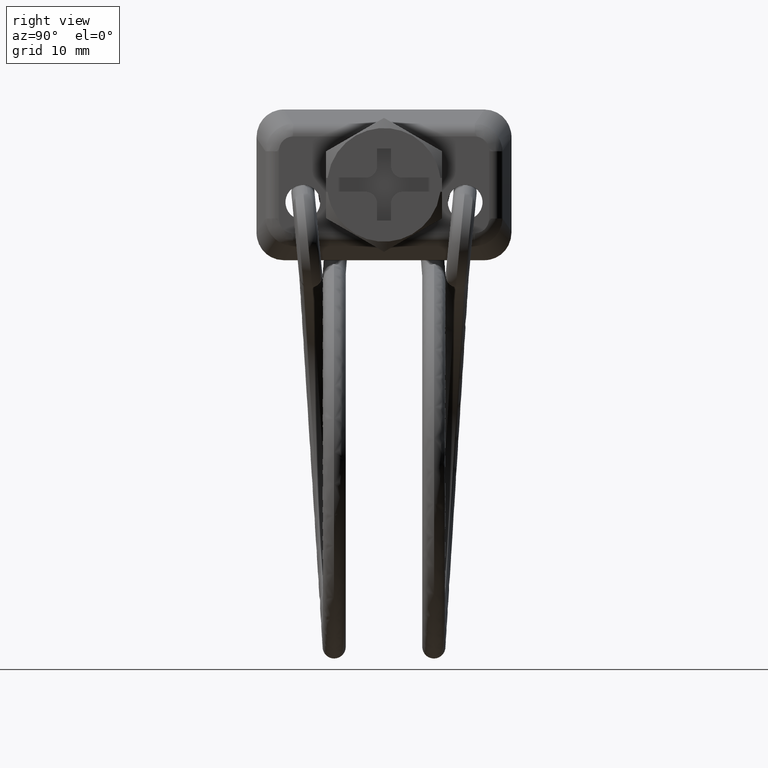
[diagram: clean part render]
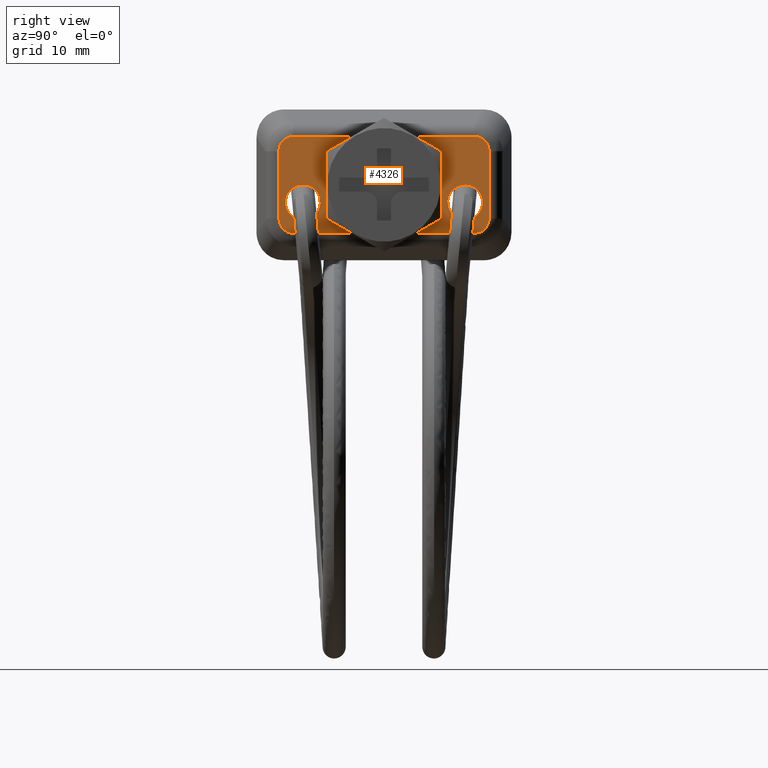
[diagram: same view with one face highlighted and labeled with its STEP entity id]
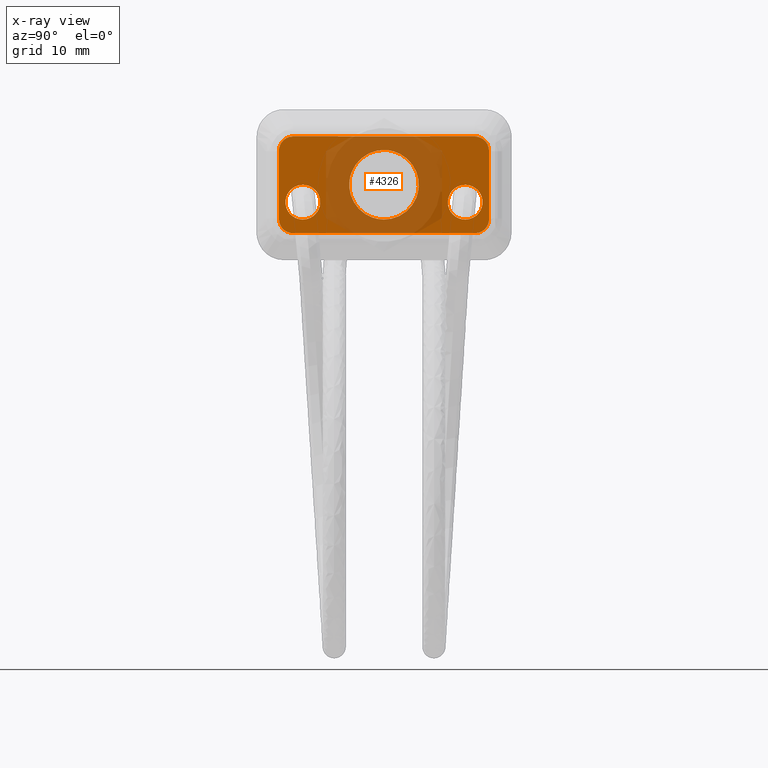
[diagram: x-ray of the same camera — body ghosted, the highlighted face saturated]
A machine part, right view. The second image highlights one B-rep face of the part: STEP entity #4326.
The next image is the same camera in x-ray: the body ghosted, the highlighted face saturated — about 46% of this face is hidden behind the body in this view.
In plain terms, the highlighted face is a freeform B-spline surface patch.
Its self-contained STEP definition (entity closure, byte-faithful):
#1716=CARTESIAN_POINT('',(-34.700000000000003,-2.979028575960326,0.354102730308290));
#1717=VERTEX_POINT('',#1716);
#1723=CARTESIAN_POINT('',(-34.700000000000003,0.0,-3.0));
#1724=VERTEX_POINT('',#1723);
#1725=CARTESIAN_POINT('',(-34.700000000000003,-2.979028575960326,0.354102730308290));
#1726=CARTESIAN_POINT('',(-34.700000000000003,-3.000000000000000,0.177672385572188));
#1727=CARTESIAN_POINT('',(-34.700000000000003,-3.0,0.0));
#1728=CARTESIAN_POINT('',(-34.700000000000003,-3.0,-3.0));
#1729=CARTESIAN_POINT('',(-34.700000000000003,0.0,-3.0));
#1737=(BOUNDED_CURVE()B_SPLINE_CURVE(2,(#1725,#1726,#1727,#1728,#1729),.UNSPECIFIED.,.F.,.U.)B_SPLINE_CURVE_WITH_KNOTS((3,2,3),(0.229562470527281,0.250000000000000,0.500000000000000),.UNSPECIFIED.)CURVE()GEOMETRIC_REPRESENTATION_ITEM()RATIONAL_B_SPLINE_CURVE((0.956026748330571,0.976055944832562,1.0,0.707106781186548,1.0))REPRESENTATION_ITEM(''));
#1738=EDGE_CURVE('',#1717,#1724,#1737,.T.);
#1740=CARTESIAN_POINT('',(-34.700000000000003,2.994404395263818,-0.183145618633717));
#1741=VERTEX_POINT('',#1740);
#1742=CARTESIAN_POINT('',(-34.700000000000003,0.0,-3.0));
#1743=CARTESIAN_POINT('',(-34.700000000000010,2.822118200662052,-3.000000000000001));
#1744=CARTESIAN_POINT('',(-34.700000000000003,2.994404395263818,-0.183145618633717));
#1752=(BOUNDED_CURVE()B_SPLINE_CURVE(2,(#1742,#1743,#1744),.UNSPECIFIED.,.F.,.U.)B_SPLINE_CURVE_WITH_KNOTS((3,3),(0.500000000000000,0.739332962238610),.UNSPECIFIED.)CURVE()GEOMETRIC_REPRESENTATION_ITEM()RATIONAL_B_SPLINE_CURVE((1.0,0.719603993287100,0.976072041666004))REPRESENTATION_ITEM(''));
#1753=EDGE_CURVE('',#1724,#1741,#1752,.T.);
#1827=CARTESIAN_POINT('',(-34.700000000000003,0.0,3.0));
#1828=VERTEX_POINT('',#1827);
#1829=CARTESIAN_POINT('',(-34.700000000000003,2.994404395263818,-0.183145618633717));
#1830=CARTESIAN_POINT('',(-34.700000000000003,3.000000000000000,-0.091658289924994));
#1831=CARTESIAN_POINT('',(-34.700000000000003,3.0,0.0));
#1832=CARTESIAN_POINT('',(-34.700000000000003,3.0,3.0));
#1833=CARTESIAN_POINT('',(-34.700000000000003,0.0,3.0));
#1841=(BOUNDED_CURVE()B_SPLINE_CURVE(2,(#1829,#1830,#1831,#1832,#1833),.UNSPECIFIED.,.F.,.U.)B_SPLINE_CURVE_WITH_KNOTS((3,2,3),(0.739332962238609,0.750000000000000,1.0),.UNSPECIFIED.)CURVE()GEOMETRIC_REPRESENTATION_ITEM()RATIONAL_B_SPLINE_CURVE((0.976072041666003,0.987502787899447,1.0,0.707106781186548,1.0))REPRESENTATION_ITEM(''));
#1842=EDGE_CURVE('',#1741,#1828,#1841,.T.);
#1844=CARTESIAN_POINT('',(-34.700000000000003,0.0,3.0));
#1845=CARTESIAN_POINT('',(-34.700000000000010,-2.664523530407568,3.000000000000001));
#1846=CARTESIAN_POINT('',(-34.700000000000003,-2.979028575960326,0.354102730308290));
#1854=(BOUNDED_CURVE()B_SPLINE_CURVE(2,(#1844,#1845,#1846),.UNSPECIFIED.,.F.,.U.)B_SPLINE_CURVE_WITH_KNOTS((3,3),(0.0,0.229562470527281),.UNSPECIFIED.)CURVE()GEOMETRIC_REPRESENTATION_ITEM()RATIONAL_B_SPLINE_CURVE((1.0,0.731050836353986,0.956026748330571))REPRESENTATION_ITEM(''));
#1855=EDGE_CURVE('',#1828,#1717,#1854,.T.);
#1906=CARTESIAN_POINT('',(-34.700000000000003,-5.728323509155258,-0.704488276245185));
#1907=VERTEX_POINT('',#1906);
#1913=CARTESIAN_POINT('',(-34.700000000000003,-7.000000000000110,1.140581E-013));
#1914=VERTEX_POINT('',#1913);
#1915=CARTESIAN_POINT('',(-34.699999999999996,-5.728323509155258,-0.704488276245185));
#1916=CARTESIAN_POINT('',(-34.700000000000010,-6.169024180304628,1.140581E-013));
#1917=CARTESIAN_POINT('',(-34.700000000000003,-7.000000000000110,1.140581E-013));
#1925=(BOUNDED_CURVE()B_SPLINE_CURVE(2,(#1915,#1916,#1917),.UNSPECIFIED.,.F.,.U.)B_SPLINE_CURVE_WITH_KNOTS((3,3),(0.840692936319955,1.0),.UNSPECIFIED.)CURVE()GEOMETRIC_REPRESENTATION_ITEM()RATIONAL_B_SPLINE_CURVE((0.864584682895011,0.813360165356128,1.0))REPRESENTATION_ITEM(''));
#1926=EDGE_CURVE('',#1907,#1914,#1925,.T.);
#1928=CARTESIAN_POINT('',(-34.700000000000003,-7.000000000000110,-2.999999999999886));
#1929=VERTEX_POINT('',#1928);
#1930=CARTESIAN_POINT('',(-34.700000000000003,-7.000000000000110,1.140581E-013));
#1931=CARTESIAN_POINT('',(-34.700000000000003,-8.500000000000110,1.140581E-013));
#1932=CARTESIAN_POINT('',(-34.700000000000003,-8.500000000000110,-1.499999999999886));
#1933=CARTESIAN_POINT('',(-34.700000000000003,-8.500000000000110,-2.999999999999886));
#1934=CARTESIAN_POINT('',(-34.700000000000003,-7.000000000000110,-2.999999999999886));
#1942=(BOUNDED_CURVE()B_SPLINE_CURVE(2,(#1930,#1931,#1932,#1933,#1934),.UNSPECIFIED.,.F.,.U.)B_SPLINE_CURVE_WITH_KNOTS((3,2,3),(0.0,0.250000000000000,0.500000000000000),.UNSPECIFIED.)CURVE()GEOMETRIC_REPRESENTATION_ITEM()RATIONAL_B_SPLINE_CURVE((1.0,0.707106781186548,1.0,0.707106781186548,1.0))REPRESENTATION_ITEM(''));
#1943=EDGE_CURVE('',#1914,#1929,#1942,.T.);
#1945=CARTESIAN_POINT('',(-34.700000000000003,-5.502797802367722,-1.591572809308911));
#1946=VERTEX_POINT('',#1945);
#1947=CARTESIAN_POINT('',(-34.700000000000003,-7.000000000000110,-2.999999999999886));
#1948=CARTESIAN_POINT('',(-34.700000000000003,-5.588940899654296,-2.999999999999887));
#1949=CARTESIAN_POINT('',(-34.700000000000003,-5.502797802367722,-1.591572809308911));
#1957=(BOUNDED_CURVE()B_SPLINE_CURVE(2,(#1947,#1948,#1949),.UNSPECIFIED.,.F.,.U.)B_SPLINE_CURVE_WITH_KNOTS((3,3),(0.500000000000000,0.739332962240415),.UNSPECIFIED.)CURVE()GEOMETRIC_REPRESENTATION_ITEM()RATIONAL_B_SPLINE_CURVE((1.0,0.719603993284985,0.976072041669873))REPRESENTATION_ITEM(''));
#1958=EDGE_CURVE('',#1929,#1946,#1957,.T.);
#2045=CARTESIAN_POINT('',(-34.700000000000003,-5.502797802367722,-1.591572809308911));
#2046=CARTESIAN_POINT('',(-34.700000000000003,-5.500000000000112,-1.545829144954528));
#2047=CARTESIAN_POINT('',(-34.700000000000003,-5.500000000000111,-1.499999999999886));
#2048=CARTESIAN_POINT('',(-34.700000000000017,-5.500000000000111,-1.069478043496760));
#2049=CARTESIAN_POINT('',(-34.699999999999996,-5.728323509155258,-0.704488276245185));
#2057=(BOUNDED_CURVE()B_SPLINE_CURVE(2,(#2045,#2046,#2047,#2048,#2049),.UNSPECIFIED.,.F.,.U.)B_SPLINE_CURVE_WITH_KNOTS((3,2,3),(0.739332962240415,0.750000000000000,0.840692936319955),.UNSPECIFIED.)CURVE()GEOMETRIC_REPRESENTATION_ITEM()RATIONAL_B_SPLINE_CURVE((0.976072041669872,0.987502787901562,1.0,0.893746615830419,0.864584682895011))REPRESENTATION_ITEM(''));
#2058=EDGE_CURVE('',#1946,#1907,#2057,.T.);
#2109=CARTESIAN_POINT('',(-34.700000000000003,5.910109551682131,-2.530601188950051));
#2110=VERTEX_POINT('',#2109);
#2116=CARTESIAN_POINT('',(-34.700000000000003,6.999999999999830,-2.999999999999886));
#2117=VERTEX_POINT('',#2116);
#2118=CARTESIAN_POINT('',(-34.700000000000003,5.910109551682131,-2.530601188950051));
#2119=CARTESIAN_POINT('',(-34.700000000000003,6.353973053097364,-2.999999999999885));
#2120=CARTESIAN_POINT('',(-34.700000000000003,6.999999999999830,-2.999999999999886));
#2128=(BOUNDED_CURVE()B_SPLINE_CURVE(2,(#2118,#2119,#2120),.UNSPECIFIED.,.F.,.U.)B_SPLINE_CURVE_WITH_KNOTS((3,3),(0.370781904211150,0.500000000000000),.UNSPECIFIED.)CURVE()GEOMETRIC_REPRESENTATION_ITEM()RATIONAL_B_SPLINE_CURVE((0.853720150702530,0.848611583981835,1.0))REPRESENTATION_ITEM(''));
#2129=EDGE_CURVE('',#2110,#2117,#2128,.T.);
#2131=CARTESIAN_POINT('',(-34.700000000000003,6.999999999999830,1.140581E-013));
#2132=VERTEX_POINT('',#2131);
#2133=CARTESIAN_POINT('',(-34.700000000000003,6.999999999999830,-2.999999999999886));
#2134=CARTESIAN_POINT('',(-34.700000000000003,8.499999999999831,-2.999999999999886));
#2135=CARTESIAN_POINT('',(-34.700000000000003,8.499999999999831,-1.499999999999886));
#2136=CARTESIAN_POINT('',(-34.700000000000003,8.499999999999831,1.140581E-013));
#2137=CARTESIAN_POINT('',(-34.700000000000003,6.999999999999830,1.140581E-013));
#2145=(BOUNDED_CURVE()B_SPLINE_CURVE(2,(#2133,#2134,#2135,#2136,#2137),.UNSPECIFIED.,.F.,.U.)B_SPLINE_CURVE_WITH_KNOTS((3,2,3),(0.500000000000000,0.750000000000000,1.0),.UNSPECIFIED.)CURVE()GEOMETRIC_REPRESENTATION_ITEM()RATIONAL_B_SPLINE_CURVE((1.0,0.707106781186548,1.0,0.707106781186548,1.0))REPRESENTATION_ITEM(''));
#2146=EDGE_CURVE('',#2117,#2132,#2145,.T.);
#2148=CARTESIAN_POINT('',(-34.700000000000003,5.502797802367442,-1.408427190690861));
#2149=VERTEX_POINT('',#2148);
#2150=CARTESIAN_POINT('',(-34.700000000000003,6.999999999999830,1.140581E-013));
#2151=CARTESIAN_POINT('',(-34.699999999999996,5.588940899654014,1.140581E-013));
#2152=CARTESIAN_POINT('',(-34.700000000000003,5.502797802367442,-1.408427190690861));
#2160=(BOUNDED_CURVE()B_SPLINE_CURVE(2,(#2150,#2151,#2152),.UNSPECIFIED.,.F.,.U.)B_SPLINE_CURVE_WITH_KNOTS((3,3),(0.0,0.239332962240415),.UNSPECIFIED.)CURVE()GEOMETRIC_REPRESENTATION_ITEM()RATIONAL_B_SPLINE_CURVE((1.0,0.719603993284986,0.976072041669873))REPRESENTATION_ITEM(''));
#2161=EDGE_CURVE('',#2132,#2149,#2160,.T.);
#2252=CARTESIAN_POINT('',(-34.700000000000003,5.502797802367442,-1.408427190690862));
#2253=CARTESIAN_POINT('',(-34.700000000000003,5.499999999999830,-1.454170855045245));
#2254=CARTESIAN_POINT('',(-34.700000000000003,5.499999999999830,-1.499999999999886));
#2255=CARTESIAN_POINT('',(-34.700000000000017,5.499999999999830,-2.096898180376984));
#2256=CARTESIAN_POINT('',(-34.700000000000003,5.910109551682131,-2.530601188950051));
#2264=(BOUNDED_CURVE()B_SPLINE_CURVE(2,(#2252,#2253,#2254,#2255,#2256),.UNSPECIFIED.,.F.,.U.)B_SPLINE_CURVE_WITH_KNOTS((3,2,3),(0.239332962240415,0.250000000000000,0.370781904211150),.UNSPECIFIED.)CURVE()GEOMETRIC_REPRESENTATION_ITEM()RATIONAL_B_SPLINE_CURVE((0.976072041669872,0.987502787901562,1.0,0.858495197204712,0.853720150702530))REPRESENTATION_ITEM(''));
#2265=EDGE_CURVE('',#2149,#2110,#2264,.T.);
#3259=CARTESIAN_POINT('',(-34.700000000000003,7.837173833659421,-4.168399938202366));
#3260=VERTEX_POINT('',#3259);
#3291=CARTESIAN_POINT('',(-34.700000000000003,9.063068073994790,-2.898235503023255));
#3292=VERTEX_POINT('',#3291);
#3306=CARTESIAN_POINT('',(-34.700000000000003,7.837173833659350,-4.168399938202257));
#3307=CARTESIAN_POINT('',(-34.700000000000003,9.063068073994772,-4.168399938202319));
#3308=CARTESIAN_POINT('',(-34.700000000000003,9.063068073994794,-2.898235503023259));
#3316=(BOUNDED_CURVE()B_SPLINE_CURVE(2,(#3306,#3307,#3308),.UNSPECIFIED.,.F.,.U.)CURVE()GEOMETRIC_REPRESENTATION_ITEM()QUASI_UNIFORM_CURVE()RATIONAL_B_SPLINE_CURVE((1.0,0.736600277350782,1.0))REPRESENTATION_ITEM(''));
#3317=EDGE_CURVE('',#3260,#3292,#3316,.T.);
#3338=CARTESIAN_POINT('',(-34.700000000000003,9.063068073994790,2.898234503023515));
#3339=VERTEX_POINT('',#3338);
#3353=CARTESIAN_POINT('',(-34.700000000000003,9.063068073994790,-2.898235503023255));
#3354=CARTESIAN_POINT('',(-34.700000000000003,9.063068073994790,2.898234503023515));
#3355=QUASI_UNIFORM_CURVE('',1,(#3353,#3354),.UNSPECIFIED.,.F.,.U.);
#3356=EDGE_CURVE('',#3292,#3339,#3355,.T.);
#3381=CARTESIAN_POINT('',(-34.700000000000003,-7.837173833659261,-4.168399938202345));
#3382=VERTEX_POINT('',#3381);
#3404=CARTESIAN_POINT('',(-34.700000000000003,-7.837173833659261,-4.168399938202345));
#3405=CARTESIAN_POINT('',(-34.700000000000003,7.837173833659421,-4.168399938202366));
#3406=QUASI_UNIFORM_CURVE('',1,(#3404,#3405),.UNSPECIFIED.,.F.,.U.);
#3407=EDGE_CURVE('',#3382,#3260,#3406,.T.);
#3452=CARTESIAN_POINT('',(-34.700000000000003,7.837173833659399,4.168398938202520));
#3453=VERTEX_POINT('',#3452);
#3467=CARTESIAN_POINT('',(-34.700000000000003,9.063068073994794,2.898234503023514));
#3468=CARTESIAN_POINT('',(-34.700000000000003,9.063068073994794,4.168398938202528));
#3469=CARTESIAN_POINT('',(-34.700000000000003,7.837173833659408,4.168398938202532));
#3477=(BOUNDED_CURVE()B_SPLINE_CURVE(2,(#3467,#3468,#3469),.UNSPECIFIED.,.F.,.U.)CURVE()GEOMETRIC_REPRESENTATION_ITEM()QUASI_UNIFORM_CURVE()RATIONAL_B_SPLINE_CURVE((1.0,0.736600277350791,1.0))REPRESENTATION_ITEM(''));
#3478=EDGE_CURVE('',#3339,#3453,#3477,.T.);
#3535=CARTESIAN_POINT('',(-34.700000000000003,-9.063068073994819,-2.898235503023300));
#3536=VERTEX_POINT('',#3535);
#3566=CARTESIAN_POINT('',(-34.700000000000003,-9.063068073994884,-2.898235503023257));
#3567=CARTESIAN_POINT('',(-34.700000000000003,-9.063068073994952,-4.168399938202581));
#3568=CARTESIAN_POINT('',(-34.700000000000003,-7.837173833659266,-4.168399938202352));
#3576=(BOUNDED_CURVE()B_SPLINE_CURVE(2,(#3566,#3567,#3568),.UNSPECIFIED.,.F.,.U.)CURVE()GEOMETRIC_REPRESENTATION_ITEM()QUASI_UNIFORM_CURVE()RATIONAL_B_SPLINE_CURVE((1.0,0.736600277350715,1.0))REPRESENTATION_ITEM(''));
#3577=EDGE_CURVE('',#3536,#3382,#3576,.T.);
#3598=CARTESIAN_POINT('',(-34.700000000000003,-7.837173833659450,4.168398938202480));
#3599=VERTEX_POINT('',#3598);
#3613=CARTESIAN_POINT('',(-34.700000000000003,7.837173833659399,4.168398938202520));
#3614=CARTESIAN_POINT('',(-34.700000000000003,-7.837173833659450,4.168398938202480));
#3615=QUASI_UNIFORM_CURVE('',1,(#3613,#3614),.UNSPECIFIED.,.F.,.U.);
#3616=EDGE_CURVE('',#3453,#3599,#3615,.T.);
#3641=CARTESIAN_POINT('',(-34.700000000000003,-9.063068073994838,2.898234503023610));
#3642=VERTEX_POINT('',#3641);
#3664=CARTESIAN_POINT('',(-34.700000000000003,-9.063068073994838,2.898234503023610));
#3665=CARTESIAN_POINT('',(-34.700000000000003,-9.063068073994819,-2.898235503023300));
#3666=QUASI_UNIFORM_CURVE('',1,(#3664,#3665),.UNSPECIFIED.,.F.,.U.);
#3667=EDGE_CURVE('',#3642,#3536,#3666,.T.);
#3725=CARTESIAN_POINT('',(-34.700000000000003,-7.837173833659446,4.168398938202476));
#3726=CARTESIAN_POINT('',(-34.700000000000003,-9.063068073994696,4.168398938202474));
#3727=CARTESIAN_POINT('',(-34.700000000000003,-9.063068073994831,2.898234503023615));
#3735=(BOUNDED_CURVE()B_SPLINE_CURVE(2,(#3725,#3726,#3727),.UNSPECIFIED.,.F.,.U.)CURVE()GEOMETRIC_REPRESENTATION_ITEM()QUASI_UNIFORM_CURVE()RATIONAL_B_SPLINE_CURVE((1.0,0.736600277350829,1.0))REPRESENTATION_ITEM(''));
#3736=EDGE_CURVE('',#3599,#3642,#3735,.T.);
#4293=CARTESIAN_POINT('',(-34.700000000000003,-9.968468879765345,4.584821917875805));
#4294=CARTESIAN_POINT('',(-34.700000000000003,-9.968468879765345,-4.584822619728491));
#4295=CARTESIAN_POINT('',(-34.700000000000003,9.968469041825584,4.584821917875805));
#4296=CARTESIAN_POINT('',(-34.700000000000003,9.968469041825584,-4.584822619728491));
#4297=B_SPLINE_SURFACE_WITH_KNOTS('',1,1,((#4293,#4295),(#4294,#4296)),.UNSPECIFIED.,.F.,.F.,.U.,(2,2),(2,2),(0.0,9.169644537604295),(0.0,19.936937921590928),.UNSPECIFIED.);
#4298=ORIENTED_EDGE('',*,*,#3407,.T.);
#4299=ORIENTED_EDGE('',*,*,#3317,.T.);
#4300=ORIENTED_EDGE('',*,*,#3356,.T.);
#4301=ORIENTED_EDGE('',*,*,#3478,.T.);
#4302=ORIENTED_EDGE('',*,*,#3616,.T.);
#4303=ORIENTED_EDGE('',*,*,#3736,.T.);
#4304=ORIENTED_EDGE('',*,*,#3667,.T.);
#4305=ORIENTED_EDGE('',*,*,#3577,.T.);
#4306=EDGE_LOOP('',(#4298,#4299,#4300,#4301,#4302,#4303,#4304,#4305));
#4307=FACE_OUTER_BOUND('',#4306,.T.);
#4308=ORIENTED_EDGE('',*,*,#1943,.F.);
#4309=ORIENTED_EDGE('',*,*,#1926,.F.);
#4310=ORIENTED_EDGE('',*,*,#2058,.F.);
#4311=ORIENTED_EDGE('',*,*,#1958,.F.);
#4312=EDGE_LOOP('',(#4308,#4309,#4310,#4311));
#4313=FACE_BOUND('',#4312,.T.);
#4314=ORIENTED_EDGE('',*,*,#2146,.F.);
#4315=ORIENTED_EDGE('',*,*,#2129,.F.);
#4316=ORIENTED_EDGE('',*,*,#2265,.F.);
#4317=ORIENTED_EDGE('',*,*,#2161,.F.);
#4318=EDGE_LOOP('',(#4314,#4315,#4316,#4317));
#4319=FACE_BOUND('',#4318,.T.);
#4320=ORIENTED_EDGE('',*,*,#1753,.F.);
#4321=ORIENTED_EDGE('',*,*,#1738,.F.);
#4322=ORIENTED_EDGE('',*,*,#1855,.F.);
#4323=ORIENTED_EDGE('',*,*,#1842,.F.);
#4324=EDGE_LOOP('',(#4320,#4321,#4322,#4323));
#4325=FACE_BOUND('',#4324,.T.);
#4326=ADVANCED_FACE('',(#4307,#4313,#4319,#4325),#4297,.T.);